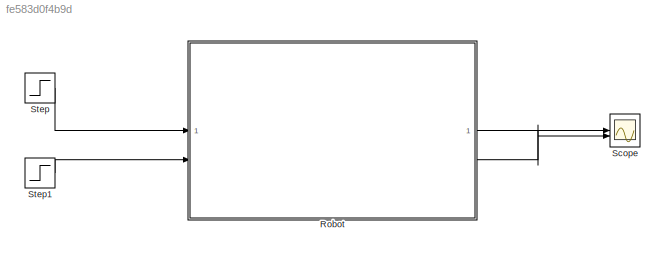
MODEL slx_fe583d0f4b9d
KIND model
CONFIG AbsTol = auto
CONFIG EnableMultiTasking = off
CONFIG FixedStep = auto
CONFIG MaxStep = 0.1
CONFIG MinStep = auto
CONFIG RelTol = 1e-3
CONFIG SampleTimeConstraint = Unconstrained
CONFIG SolverName = VariableStepDiscrete
CONFIG StartTime = 0.0
CONFIG StopTime = 10.0
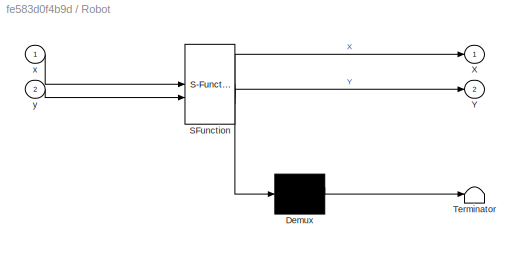
BLOCK [SubSystem] Robot
  ErrorFcn = Stateflow.Translate.translate
  PermitHierarchicalResolution = ExplicitOnly
  SFBlockType = Chart
  TreatAsAtomicUnit = on
BLOCK [Demux] Robot/ Demux 
  Outputs = 1
BLOCK [S-Function] Robot/ SFunction 
  EnableBusSupport = on
  FunctionName = sf_sfun
  PortCounts = [2 3]
  SFcnIsStateOwnerBlock = off
  SFunctionDeploymentMode = off
  Tag = Stateflow S-Function 3
BLOCK [Terminator] Robot/ Terminator 
BLOCK [Outport] Robot/X
BLOCK [Outport] Robot/Y
  Port = 2
BLOCK [Inport] Robot/x
BLOCK [Inport] Robot/y
  Port = 2
BLOCK [Scope] Scope
  Floating = off
  NumInputPorts = 2
  ScopeSpecificationString = Simulink.scopes.TimeScopeBlockCfg('CurrentConfiguration', extmgr.ConfigurationSet(extmgr.Configuration('Core','General UI',true),extmgr.Configuration('Core','Source UI',true),extmgr.Configuration('Sources','WiredSimulink',true),extmgr.Configuration('Visuals','Time Domain',true,'SerializedDisplays',{struct('MinYLimReal','-1.00000','MaxYLimReal','1.00000','YLabelReal','','MinYLimMag','0.00000','MaxY...<+1495ch>
BLOCK [Step] Step
  After = 4
  SampleTime = 0
BLOCK [Step] Step1
  After = 10
  SampleTime = 0
LINE Robot:1 -> Scope:1
LINE Robot:2 -> Scope:2
LINE Step1:1 -> Robot:2
LINE Step:1 -> Robot:1
CHART Robot states=6 transitions=10
  STATE_LABEL 'Down\n'
  STATE_LABEL 'Stopped\n'
  STATE_LABEL 'Up'
  STATE_LABEL 'Left'
  STATE_LABEL 'Right'
  STATE_LABEL 'Straight'
CHART  states=0 transitions=0
